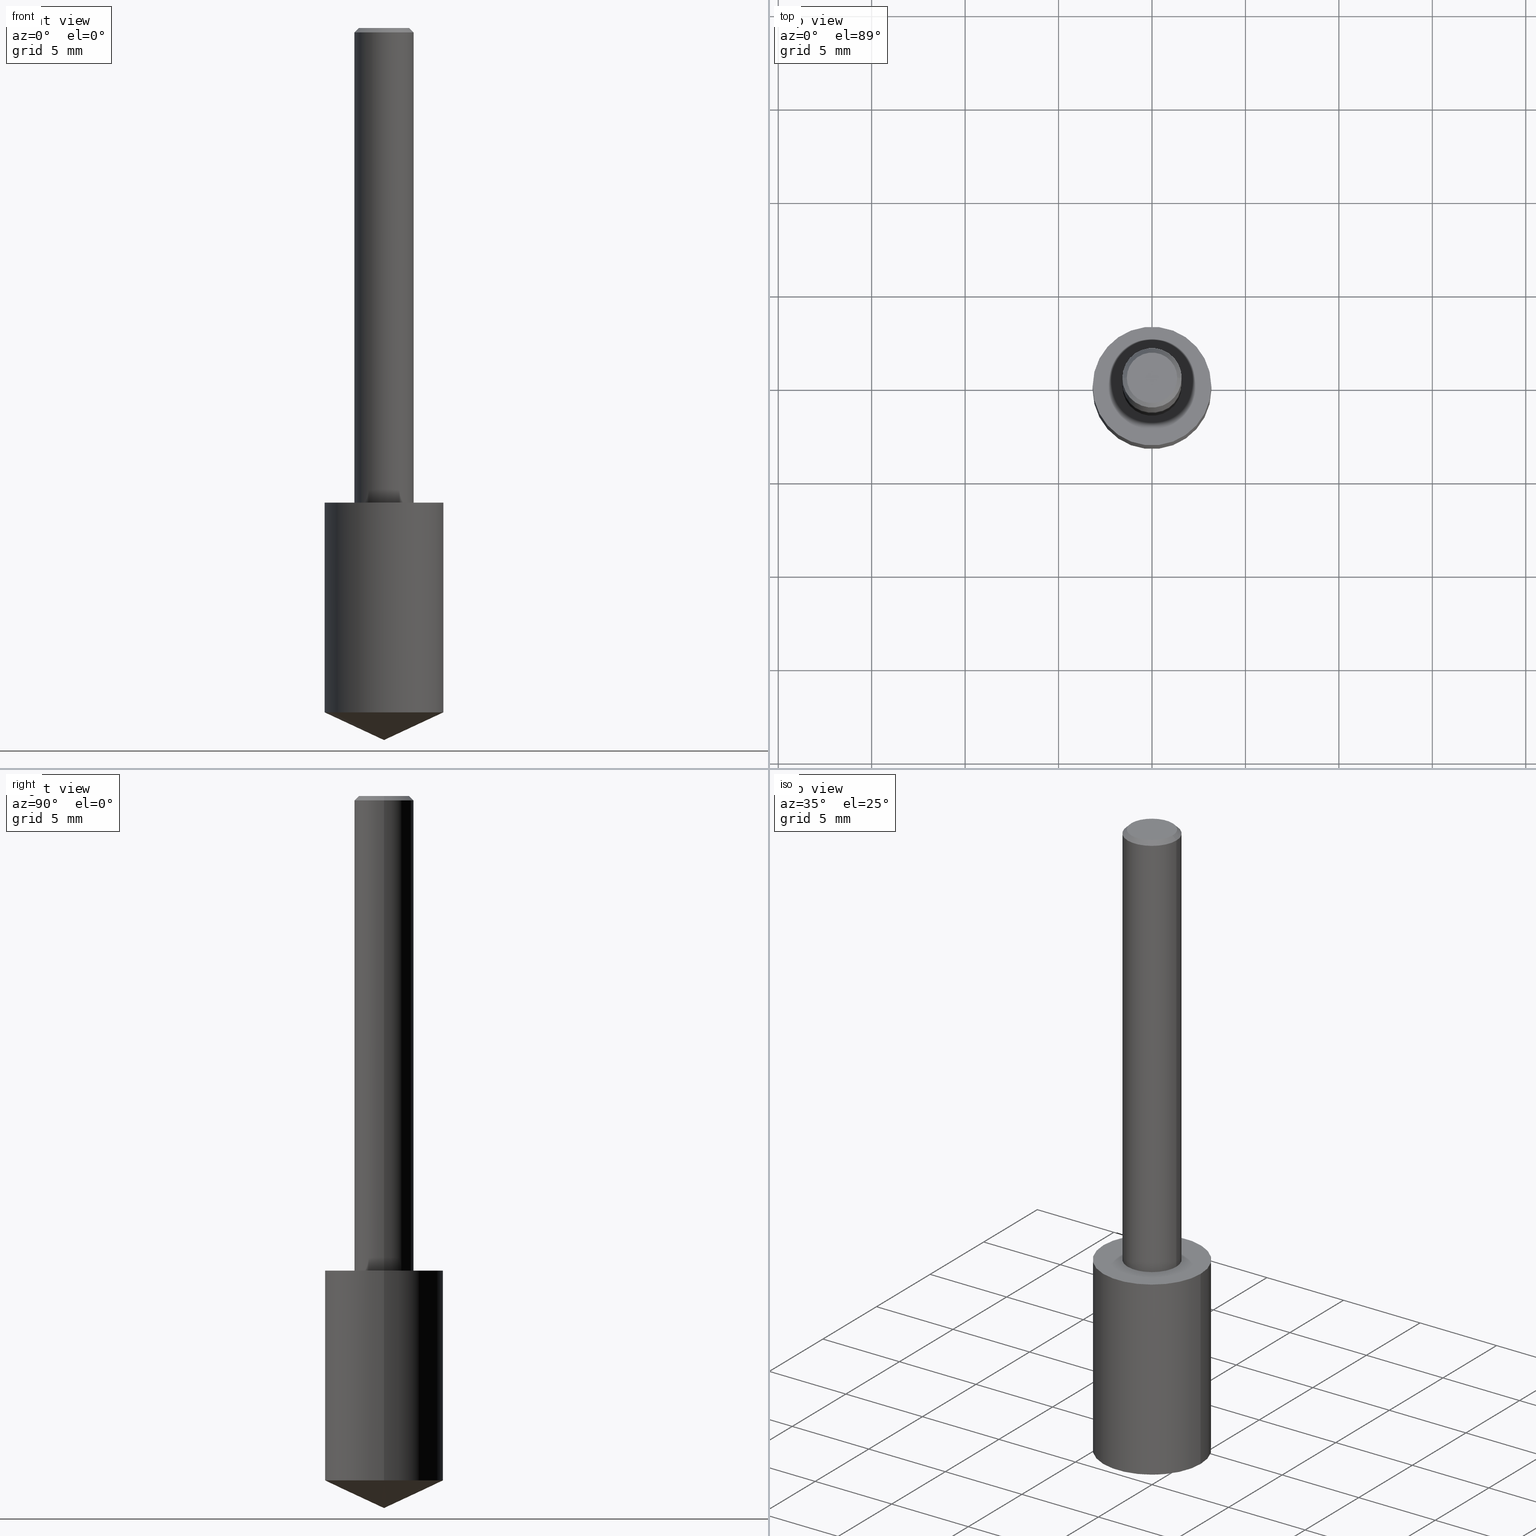
[diagram: canonical four-view strip — front | top / right | iso, engineering-drawing reading convention]
A machine part, canonical four-view strip (front | top / right | iso — engineering-drawing reading convention). The complete STEP part file that produces these views, byte-faithful:
ISO-10303-21;
HEADER;
FILE_DESCRIPTION (( 'STEP AP203' ),
    '1' );
FILE_NAME ('06173.STEP',
    '2024-04-30T18:32:59',
    ( '' ),
    ( '' ),
    'SwSTEP 2.0',
    'SolidWorks 2023',
    '' );
FILE_SCHEMA (( 'CONFIG_CONTROL_DESIGN' ));
ENDSEC;

DATA;
#1 = PERSON_AND_ORGANIZATION_ROLE ( 'design_supplier' ) ;
#2 = DIRECTION ( 'NONE',  ( -1.000000000000000000, 6.982962677686265922E-15, -4.876176775795935793E-29 ) ) ;
#3 = EDGE_CURVE ( 'NONE', #246, #134, #335, .T. ) ;
#4 = EDGE_LOOP ( 'NONE', ( #326, #301, #225, #144 ) ) ;
#5 = LINE ( 'NONE', #159, #296 ) ;
#6 = LINE ( 'NONE', #112, #90 ) ;
#7 = EDGE_LOOP ( 'NONE', ( #117, #323, #294, #272 ) ) ;
#8 = ADVANCED_FACE ( 'NONE', ( #89 ), #226, .T. ) ;
#9 = CARTESIAN_POINT ( 'NONE',  ( 2.292627005798582375E-31, -3.273263755165473266E-17, -0.009375000000000069042 ) ) ;
#10 = APPROVAL ( #19, 'UNSPECIFIED' ) ;
#11 = CC_DESIGN_PERSON_AND_ORGANIZATION_ASSIGNMENT ( #116, #223, ( #154 ) ) ;
#12 = ORIENTED_EDGE ( 'NONE', *, *, #98, .F. ) ;
#13 = ORIENTED_EDGE ( 'NONE', *, *, #292, .T. ) ;
#14 = CARTESIAN_POINT ( 'NONE',  ( 0.06250000000000012490, -3.927916506198539224E-15, -1.000000000000000222 ) ) ;
#15 = CLOSED_SHELL ( 'NONE', ( #160, #138, #183, #29, #8, #84 ) ) ;
#16 = APPROVAL_ROLE ( '' ) ;
#17 = CARTESIAN_POINT ( 'NONE',  ( 0.1250000000000000000, -4.364351673553930105E-15, -1.000000000000000222 ) ) ;
#18 = ORIENTED_EDGE ( 'NONE', *, *, #242, .F. ) ;
#19 = APPROVAL_STATUS ( 'not_yet_approved' ) ;
#20 = PRODUCT_DEFINITION_SHAPE ( 'NONE', 'NONE',  #268 ) ;
#21 = DIRECTION ( 'NONE',  ( 1.000000000000000000, -6.982962677686270655E-15, 0.000000000000000000 ) ) ;
#22 = VERTEX_POINT ( 'NONE', #244 ) ;
#23 = DIRECTION ( 'NONE',  ( -2.445468806185136877E-29, 3.491481338843145188E-15, 1.000000000000000000 ) ) ;
#24 = ADVANCED_FACE ( 'NONE', ( #63 ), #87, .T. ) ;
#25 = CIRCLE ( 'NONE', #212, 0.1250000000000000000 ) ;
#26 = DIRECTION ( 'NONE',  ( -0.9063077870366507138, 7.915267918739014631E-15, 0.4226182617406978315 ) ) ;
#27 = CARTESIAN_POINT ( 'NONE',  ( 3.668203209277704895E-29, -5.237222008264718177E-15, -1.500000000000000222 ) ) ;
#28 = PERSON_AND_ORGANIZATION ( #171, #108 ) ;
#29 = ADVANCED_FACE ( 'NONE', ( #161 ), #91, .T. ) ;
#30 = CIRCLE ( 'NONE', #218, 0.06250000000000000000 ) ;
#31 = CC_DESIGN_DATE_AND_TIME_ASSIGNMENT ( #76, #198, ( #268 ) ) ;
#32 = CARTESIAN_POINT ( 'NONE',  ( 2.292627005798582375E-31, -3.273263755165473266E-17, -0.009375000000000069042 ) ) ;
#33 = CC_DESIGN_APPROVAL ( #10, ( #275 ) ) ;
#34 = PRODUCT_RELATED_PRODUCT_CATEGORY ( 'detail', '', ( #154 ) ) ;
#35 = EDGE_LOOP ( 'NONE', ( #249, #115, #234 ) ) ;
#36 =( NAMED_UNIT ( * ) SI_UNIT ( $, .STERADIAN. ) SOLID_ANGLE_UNIT ( ) );
#37 = ORIENTED_EDGE ( 'NONE', *, *, #290, .T. ) ;
#38 = ORIENTED_EDGE ( 'NONE', *, *, #290, .F. ) ;
#39 = EDGE_CURVE ( 'NONE', #66, #22, #247, .T. ) ;
#40 = LOCAL_TIME ( 14, 32, 59.00000000000000000, #316 ) ;
#41 = DIRECTION ( 'NONE',  ( 1.000000000000000000, -6.982962677686266711E-15, 0.000000000000000000 ) ) ;
#42 = APPROVAL_DATE_TIME ( #332, #261 ) ;
#43 = PLANE ( 'NONE',  #303 ) ;
#44 = EDGE_LOOP ( 'NONE', ( #68, #38 ) ) ;
#45 = EDGE_CURVE ( 'NONE', #22, #66, #25, .T. ) ;
#46 = COORDINATED_UNIVERSAL_TIME_OFFSET ( 5, 0, .BEHIND. ) ;
#47 = FACE_OUTER_BOUND ( 'NONE', #194, .T. ) ;
#48 = DESIGN_CONTEXT ( 'detailed design', #254, 'design' ) ;
#49 = VECTOR ( 'NONE', #310, 39.37007874015748143 ) ;
#50 = AXIS2_PLACEMENT_3D ( 'NONE', #32, #81, #195 ) ;
#51 = DIRECTION ( 'NONE',  ( -2.445468806185136597E-29, 3.491481338843145583E-15, 1.000000000000000000 ) ) ;
#52 = APPLICATION_CONTEXT ( 'configuration controlled 3d designs of mechanical parts and assemblies' ) ;
#53 = CARTESIAN_POINT ( 'NONE',  ( -0.1249999999999999861, -4.145530527738615868E-15, -1.441711542730625517 ) ) ;
#54 = EDGE_CURVE ( 'NONE', #170, #193, #5, .T. ) ;
#55 = APPROVAL_ROLE ( '' ) ;
#56 = FACE_OUTER_BOUND ( 'NONE', #44, .T. ) ;
#57 = CYLINDRICAL_SURFACE ( 'NONE', #228, 0.1250000000000000000 ) ;
#58 = VECTOR ( 'NONE', #143, 39.37007874015748143 ) ;
#59 = DIRECTION ( 'NONE',  ( 1.000000000000000000, -6.982962677686266711E-15, 0.000000000000000000 ) ) ;
#60 = AXIS2_PLACEMENT_3D ( 'NONE', #148, #145, #327 ) ;
#61 = DIRECTION ( 'NONE',  ( -2.445468806185136597E-29, 3.491481338843145583E-15, 1.000000000000000000 ) ) ;
#62 = LINE ( 'NONE', #162, #79 ) ;
#63 = FACE_OUTER_BOUND ( 'NONE', #7, .T. ) ;
#64 = AXIS2_PLACEMENT_3D ( 'NONE', #9, #299, #321 ) ;
#65 = LOCAL_TIME ( 14, 32, 59.00000000000000000, #120 ) ;
#66 = VERTEX_POINT ( 'NONE', #295 ) ;
#67 = FACE_OUTER_BOUND ( 'NONE', #215, .T. ) ;
#68 = ORIENTED_EDGE ( 'NONE', *, *, #3, .F. ) ;
#69 = DIRECTION ( 'NONE',  ( -2.445468806185136597E-29, 3.491481338843145583E-15, 1.000000000000000000 ) ) ;
#70 = CIRCLE ( 'NONE', #263, 0.1250000000000000000 ) ;
#71 = CARTESIAN_POINT ( 'NONE',  ( -9.261009624683002666E-28, 1.322226732217803884E-13, 37.87007874015748143 ) ) ;
#72 = CALENDAR_DATE ( 2024, 30, 4 ) ;
#73 = DIRECTION ( 'NONE',  ( -2.445468806185136597E-29, 3.491481338843145583E-15, 1.000000000000000000 ) ) ;
#74 = EDGE_CURVE ( 'NONE', #92, #193, #107, .T. ) ;
#75 = DIRECTION ( 'NONE',  ( 1.000000000000000000, -6.982962677686265922E-15, 4.876176775795935793E-29 ) ) ;
#76 = DATE_AND_TIME ( #252, #210 ) ;
#77 = CARTESIAN_POINT ( 'NONE',  ( 0.1249999999999999861, -5.906579282149524440E-15, -1.441711542730625517 ) ) ;
#78 = CIRCLE ( 'NONE', #103, 0.05312499999999999861 ) ;
#79 = VECTOR ( 'NONE', #245, 39.37007874015748143 ) ;
#80 = EDGE_CURVE ( 'NONE', #111, #243, #70, .T. ) ;
#81 = DIRECTION ( 'NONE',  ( -2.445468806185136597E-29, 3.491481338843145583E-15, 1.000000000000000000 ) ) ;
#82 = CARTESIAN_POINT ( 'NONE',  ( 0.000000000000000000, 0.000000000000000000, 0.000000000000000000 ) ) ;
#83 = AXIS2_PLACEMENT_3D ( 'NONE', #146, #206, #100 ) ;
#84 = ADVANCED_FACE ( 'NONE', ( #231 ), #43, .F. ) ;
#85 = PLANE ( 'NONE',  #318 ) ;
#86 = DIRECTION ( 'NONE',  ( -2.445468806185136597E-29, 3.491481338843145583E-15, 1.000000000000000000 ) ) ;
#87 = CYLINDRICAL_SURFACE ( 'NONE', #167, 0.1250000000000000000 ) ;
#88 = VECTOR ( 'NONE', #178, 39.37007874015748143 ) ;
#89 = FACE_OUTER_BOUND ( 'NONE', #147, .T. ) ;
#90 = VECTOR ( 'NONE', #219, 39.37007874015748143 ) ;
#91 = CYLINDRICAL_SURFACE ( 'NONE', #185, 0.06250000000000006939 ) ;
#92 = VERTEX_POINT ( 'NONE', #260 ) ;
#93 = VERTEX_POINT ( 'NONE', #149 ) ;
#94 = CARTESIAN_POINT ( 'NONE',  ( 3.668203209277704895E-29, -5.237222008264718177E-15, -1.500000000000000222 ) ) ;
#95 = EDGE_LOOP ( 'NONE', ( #222, #224 ) ) ;
#96 =( LENGTH_UNIT ( ) NAMED_UNIT ( * ) SI_UNIT ( $, .METRE. ) );
#97 = CARTESIAN_POINT ( 'NONE',  ( 2.292627005798582375E-31, -3.273263755165473266E-17, -0.009375000000000069042 ) ) ;
#98 = EDGE_CURVE ( 'NONE', #134, #193, #173, .T. ) ;
#99 = COORDINATED_UNIVERSAL_TIME_OFFSET ( 5, 0, .BEHIND. ) ;
#100 = DIRECTION ( 'NONE',  ( 1.000000000000000000, -6.982962677686266711E-15, 0.000000000000000000 ) ) ;
#101 = APPROVAL_DATE_TIME ( #317, #10 ) ;
#102 = DIRECTION ( 'NONE',  ( -2.438088387897960049E-29, 3.491481338843145188E-15, 1.000000000000000000 ) ) ;
#103 = AXIS2_PLACEMENT_3D ( 'NONE', #121, #73, #253 ) ;
#104 = CALENDAR_DATE ( 2024, 30, 4 ) ;
#105 = LINE ( 'NONE', #328, #58 ) ;
#106 = EDGE_CURVE ( 'NONE', #309, #111, #279, .T. ) ;
#107 = CIRCLE ( 'NONE', #50, 0.06250000000000000000 ) ;
#108 = ORGANIZATION ( 'UNSPECIFIED', 'UNSPECIFIED', '' ) ;
#109 = CARTESIAN_POINT ( 'NONE',  ( 2.445468806185137438E-29, -3.491481338843146371E-15, -1.000000000000000222 ) ) ;
#110 = CARTESIAN_POINT ( 'NONE',  ( 3.208524509419923742E-29, -2.398742141377440690E-15, -1.000000000000000222 ) ) ;
#111 = VERTEX_POINT ( 'NONE', #53 ) ;
#112 = CARTESIAN_POINT ( 'NONE',  ( 0.06250000000000000000, -4.615137624123754923E-16, -0.009375000000000069042 ) ) ;
#113 = DIRECTION ( 'NONE',  ( -2.445468806185136597E-29, 3.491481338843145583E-15, 1.000000000000000000 ) ) ;
#114 = ORIENTED_EDGE ( 'NONE', *, *, #242, .T. ) ;
#115 = ORIENTED_EDGE ( 'NONE', *, *, #166, .T. ) ;
#116 = PERSON_AND_ORGANIZATION ( #171, #108 ) ;
#117 = ORIENTED_EDGE ( 'NONE', *, *, #258, .T. ) ;
#118 = DIRECTION ( 'NONE',  ( -1.000000000000000000, 6.982962677686265922E-15, -4.876176775795935793E-29 ) ) ;
#119 = ORIENTED_EDGE ( 'NONE', *, *, #80, .T. ) ;
#120 = COORDINATED_UNIVERSAL_TIME_OFFSET ( 5, 0, .BEHIND. ) ;
#121 = CARTESIAN_POINT ( 'NONE',  ( -7.487088864773345706E-50, 1.068957861474247695E-35, 3.061616997868395197E-21 ) ) ;
#122 = FACE_OUTER_BOUND ( 'NONE', #306, .T. ) ;
#123 = PERSON_AND_ORGANIZATION ( #171, #108 ) ;
#124 = CARTESIAN_POINT ( 'NONE',  ( 3.668203209277704895E-29, -5.237222008264718177E-15, -1.500000000000000222 ) ) ;
#125 = DIRECTION ( 'NONE',  ( 1.000000000000000000, -6.982962677686266711E-15, 0.000000000000000000 ) ) ;
#126 = AXIS2_PLACEMENT_3D ( 'NONE', #256, #337, #288 ) ;
#127 = CARTESIAN_POINT ( 'NONE',  ( 2.445468806185137438E-29, -3.491481338843146371E-15, -1.000000000000000222 ) ) ;
#128 = EDGE_CURVE ( 'NONE', #243, #22, #333, .T. ) ;
#129 = CC_DESIGN_PERSON_AND_ORGANIZATION_ASSIGNMENT ( #28, #287, ( #275 ) ) ;
#130 = VECTOR ( 'NONE', #23, 39.37007874015748143 ) ;
#131 =( GEOMETRIC_REPRESENTATION_CONTEXT ( 3 ) GLOBAL_UNCERTAINTY_ASSIGNED_CONTEXT ( ( #338 ) ) GLOBAL_UNIT_ASSIGNED_CONTEXT ( ( #133, #216, #36 ) ) REPRESENTATION_CONTEXT ( 'NONE', 'WORKASPACE' ) );
#132 = ORIENTED_EDGE ( 'NONE', *, *, #188, .F. ) ;
#133 =( CONVERSION_BASED_UNIT ( 'INCH', #214 ) LENGTH_UNIT ( ) NAMED_UNIT ( #221 ) );
#134 = VERTEX_POINT ( 'NONE', #179 ) ;
#135 = ORIENTED_EDGE ( 'NONE', *, *, #39, .F. ) ;
#136 = ORIENTED_EDGE ( 'NONE', *, *, #106, .T. ) ;
#137 = AXIS2_PLACEMENT_3D ( 'NONE', #71, #211, #157 ) ;
#138 = ADVANCED_FACE ( 'NONE', ( #331 ), #175, .T. ) ;
#139 = APPLICATION_PROTOCOL_DEFINITION ( 'international standard', 'config_control_design', 1994, #52 ) ;
#140 = CARTESIAN_POINT ( 'NONE',  ( 2.445468806185136877E-29, -3.491481338843145977E-15, -1.000000000000000222 ) ) ;
#141 = CC_DESIGN_DATE_AND_TIME_ASSIGNMENT ( #207, #264, ( #275 ) ) ;
#142 = COORDINATED_UNIVERSAL_TIME_OFFSET ( 5, 0, .BEHIND. ) ;
#143 = DIRECTION ( 'NONE',  ( -2.445468806185136877E-29, 3.491481338843145188E-15, 1.000000000000000000 ) ) ;
#144 = ORIENTED_EDGE ( 'NONE', *, *, #292, .F. ) ;
#145 = DIRECTION ( 'NONE',  ( 0.000000000000000000, 0.000000000000000000, 1.000000000000000000 ) ) ;
#146 = CARTESIAN_POINT ( 'NONE',  ( -9.261009624683002666E-28, 1.322226732217803884E-13, 37.87007874015748143 ) ) ;
#147 = EDGE_LOOP ( 'NONE', ( #250, #18, #217, #177 ) ) ;
#148 = CARTESIAN_POINT ( 'NONE',  ( 0.000000000000000000, 0.000000000000000000, 0.000000000000000000 ) ) ;
#149 = CARTESIAN_POINT ( 'NONE',  ( 0.05312499999999999861, -4.129888592719939842E-16, 3.061617000609493422E-21 ) ) ;
#150 = ORIENTED_EDGE ( 'NONE', *, *, #205, .F. ) ;
#151 = MECHANICAL_CONTEXT ( 'NONE', #52, 'mechanical' ) ;
#152 = DIRECTION ( 'NONE',  ( 1.000000000000000000, -6.982962677686270655E-15, 0.000000000000000000 ) ) ;
#153 = CARTESIAN_POINT ( 'NONE',  ( 2.292627005798582375E-31, -3.273263755165473266E-17, -0.009375000000000069042 ) ) ;
#154 = PRODUCT ( '06173', '06173', '', ( #151 ) ) ;
#155 = VECTOR ( 'NONE', #26, 39.37007874015748143 ) ;
#156 = CC_DESIGN_PERSON_AND_ORGANIZATION_ASSIGNMENT ( #237, #1, ( #241 ) ) ;
#157 = DIRECTION ( 'NONE',  ( 1.000000000000000000, -6.982962677686266711E-15, 0.000000000000000000 ) ) ;
#158 = APPROVAL_DATE_TIME ( #201, #236 ) ;
#159 = CARTESIAN_POINT ( 'NONE',  ( -0.06250000000000000000, 4.037025298037369491E-16, -0.009375000000000069042 ) ) ;
#160 = ADVANCED_FACE ( 'NONE', ( #47 ), #239, .T. ) ;
#161 = FACE_OUTER_BOUND ( 'NONE', #200, .T. ) ;
#162 = CARTESIAN_POINT ( 'NONE',  ( 0.06250000000000006939, -4.364351673553921624E-16, 3.047610484872463374E-30 ) ) ;
#163 = ORIENTED_EDGE ( 'NONE', *, *, #258, .F. ) ;
#164 = DIRECTION ( 'NONE',  ( 2.438088387897960049E-29, -3.491481338843145188E-15, -1.000000000000000000 ) ) ;
#165 = CARTESIAN_POINT ( 'NONE',  ( 0.000000000000000000, 0.000000000000000000, 0.000000000000000000 ) ) ;
#166 = EDGE_CURVE ( 'NONE', #309, #243, #334, .T. ) ;
#167 = AXIS2_PLACEMENT_3D ( 'NONE', #325, #113, #220 ) ;
#168 = DIRECTION ( 'NONE',  ( 1.000000000000000000, -6.982962677686264344E-15, 0.000000000000000000 ) ) ;
#169 = CC_DESIGN_SECURITY_CLASSIFICATION ( #275, ( #241 ) ) ;
#170 = VERTEX_POINT ( 'NONE', #308 ) ;
#171 = PERSON ( 'UNSPECIFIED', 'UNSPECIFIED', 'UNSPECIFIED', ('UNSPECIFIED'), ('UNSPECIFIED'), ('UNSPECIFIED') ) ;
#172 = PERSON_AND_ORGANIZATION ( #171, #108 ) ;
#173 = LINE ( 'NONE', #227, #88 ) ;
#174 = APPROVAL_STATUS ( 'not_yet_approved' ) ;
#175 = CYLINDRICAL_SURFACE ( 'NONE', #180, 0.06250000000000006939 ) ;
#176 = CARTESIAN_POINT ( 'NONE',  ( -0.06250000000000000000, -1.318017778347336672E-15, -0.009375000000000069042 ) ) ;
#177 = ORIENTED_EDGE ( 'NONE', *, *, #192, .T. ) ;
#178 = DIRECTION ( 'NONE',  ( -2.445468806185136877E-29, 3.491481338843145188E-15, 1.000000000000000000 ) ) ;
#179 = CARTESIAN_POINT ( 'NONE',  ( -0.06250000000000012490, -1.318017778347335489E-15, -1.000000000000000222 ) ) ;
#180 = AXIS2_PLACEMENT_3D ( 'NONE', #82, #203, #315 ) ;
#181 = LOCAL_TIME ( 14, 32, 59.00000000000000000, #99 ) ;
#182 = CALENDAR_DATE ( 2024, 30, 4 ) ;
#183 = ADVANCED_FACE ( 'NONE', ( #56 ), #235, .F. ) ;
#184 = DIRECTION ( 'NONE',  ( -2.445468806185136597E-29, 3.491481338843145583E-15, 1.000000000000000000 ) ) ;
#185 = AXIS2_PLACEMENT_3D ( 'NONE', #165, #61, #276 ) ;
#186 = APPROVAL_PERSON_ORGANIZATION ( #281, #236, #16 ) ;
#187 = ORIENTED_EDGE ( 'NONE', *, *, #54, .F. ) ;
#188 = EDGE_CURVE ( 'NONE', #93, #170, #283, .T. ) ;
#189 = DIRECTION ( 'NONE',  ( -2.445468806185136597E-29, 3.491481338843145583E-15, 1.000000000000000000 ) ) ;
#190 = ORIENTED_EDGE ( 'NONE', *, *, #192, .F. ) ;
#191 = DIRECTION ( 'NONE',  ( -2.445468806185136597E-29, 3.491481338843145583E-15, 1.000000000000000000 ) ) ;
#192 = EDGE_CURVE ( 'NONE', #193, #92, #30, .T. ) ;
#193 = VERTEX_POINT ( 'NONE', #176 ) ;
#194 = EDGE_LOOP ( 'NONE', ( #132, #329, #280, #187 ) ) ;
#195 = DIRECTION ( 'NONE',  ( 1.000000000000000000, -6.982962677686266711E-15, 0.000000000000000000 ) ) ;
#196 = ORIENTED_EDGE ( 'NONE', *, *, #188, .T. ) ;
#197 = MANIFOLD_SOLID_BREP ( 'Body-Move/Copy2[2]', #15 ) ;
#198 = DATE_TIME_ROLE ( 'creation_date' ) ;
#199 = CARTESIAN_POINT ( 'NONE',  ( 3.525660605264793981E-29, -5.033708947438741890E-15, -1.441711542730625517 ) ) ;
#200 = EDGE_LOOP ( 'NONE', ( #12, #37, #13, #190 ) ) ;
#201 = DATE_AND_TIME ( #230, #65 ) ;
#202 = DIRECTION ( 'NONE',  ( 2.438088387897960049E-29, -3.491481338843145188E-15, -1.000000000000000000 ) ) ;
#203 = DIRECTION ( 'NONE',  ( -2.445468806185136597E-29, 3.491481338843145583E-15, 1.000000000000000000 ) ) ;
#204 = SHAPE_DEFINITION_REPRESENTATION ( #20, #339 ) ;
#205 = EDGE_CURVE ( 'NONE', #111, #66, #105, .T. ) ;
#206 = DIRECTION ( 'NONE',  ( -2.445468806185136597E-29, 3.491481338843145583E-15, 1.000000000000000000 ) ) ;
#207 = DATE_AND_TIME ( #182, #40 ) ;
#208 = CC_DESIGN_PERSON_AND_ORGANIZATION_ASSIGNMENT ( #265, #340, ( #241 ) ) ;
#209 = AXIS2_PLACEMENT_3D ( 'NONE', #109, #69, #168 ) ;
#210 = LOCAL_TIME ( 14, 32, 59.00000000000000000, #142 ) ;
#211 = DIRECTION ( 'NONE',  ( -2.445468806185136597E-29, 3.491481338843145583E-15, 1.000000000000000000 ) ) ;
#212 = AXIS2_PLACEMENT_3D ( 'NONE', #140, #86, #271 ) ;
#213 = APPROVAL_PERSON_ORGANIZATION ( #312, #261, #304 ) ;
#214 = LENGTH_MEASURE_WITH_UNIT ( LENGTH_MEASURE( 0.02539999999999999897 ), #96 );
#215 = EDGE_LOOP ( 'NONE', ( #259, #136, #163 ) ) ;
#216 =( NAMED_UNIT ( * ) PLANE_ANGLE_UNIT ( ) SI_UNIT ( $, .RADIAN. ) );
#217 = ORIENTED_EDGE ( 'NONE', *, *, #54, .T. ) ;
#218 = AXIS2_PLACEMENT_3D ( 'NONE', #153, #262, #125 ) ;
#219 = DIRECTION ( 'NONE',  ( 0.7071067811865450192, -7.319954787623246579E-15, -0.7071067811865500152 ) ) ;
#220 = DIRECTION ( 'NONE',  ( 1.000000000000000000, -6.982962677686266711E-15, 0.000000000000000000 ) ) ;
#221 = DIMENSIONAL_EXPONENTS ( 1.000000000000000000, 0.000000000000000000, 0.000000000000000000, 0.000000000000000000, 0.000000000000000000, 0.000000000000000000, 0.000000000000000000 ) ;
#222 = ORIENTED_EDGE ( 'NONE', *, *, #45, .T. ) ;
#223 = PERSON_AND_ORGANIZATION_ROLE ( 'design_owner' ) ;
#224 = ORIENTED_EDGE ( 'NONE', *, *, #39, .T. ) ;
#225 = ORIENTED_EDGE ( 'NONE', *, *, #74, .F. ) ;
#226 = CONICAL_SURFACE ( 'NONE', #64, 0.06250000000000000000, 0.7853981633974447263 ) ;
#227 = CARTESIAN_POINT ( 'NONE',  ( -0.06250000000000006939, 4.440892098500631092E-16, -3.074334431409319267E-30 ) ) ;
#228 = AXIS2_PLACEMENT_3D ( 'NONE', #127, #184, #59 ) ;
#229 = ADVANCED_FACE ( 'NONE', ( #282 ), #266, .T. ) ;
#230 = CALENDAR_DATE ( 2024, 30, 4 ) ;
#231 = FACE_OUTER_BOUND ( 'NONE', #298, .T. ) ;
#232 = APPLICATION_PROTOCOL_DEFINITION ( 'international standard', 'config_control_design', 1994, #254 ) ;
#233 = CARTESIAN_POINT ( 'NONE',  ( -3.743544432386672853E-50, 5.344789307371238476E-36, 1.530808498934197599E-21 ) ) ;
#234 = ORIENTED_EDGE ( 'NONE', *, *, #80, .F. ) ;
#235 = PLANE ( 'NONE',  #238 ) ;
#236 = APPROVAL ( #255, 'UNSPECIFIED' ) ;
#237 = PERSON_AND_ORGANIZATION ( #171, #108 ) ;
#238 = AXIS2_PLACEMENT_3D ( 'NONE', #286, #102, #75 ) ;
#239 = CONICAL_SURFACE ( 'NONE', #324, 0.06250000000000000000, 0.7853981633974447263 ) ;
#240 = AXIS2_PLACEMENT_3D ( 'NONE', #322, #189, #300 ) ;
#241 = PRODUCT_DEFINITION_FORMATION_WITH_SPECIFIED_SOURCE ( 'ANY', '', #154, .NOT_KNOWN. ) ;
#242 = EDGE_CURVE ( 'NONE', #170, #93, #78, .T. ) ;
#243 = VERTEX_POINT ( 'NONE', #77 ) ;
#244 = CARTESIAN_POINT ( 'NONE',  ( 0.1250000000000000000, -4.364351673553929316E-15, -1.000000000000000222 ) ) ;
#245 = DIRECTION ( 'NONE',  ( -2.445468806185136877E-29, 3.491481338843145188E-15, 1.000000000000000000 ) ) ;
#246 = VERTEX_POINT ( 'NONE', #14 ) ;
#247 = CIRCLE ( 'NONE', #311, 0.1250000000000000000 ) ;
#248 = LOCAL_TIME ( 14, 32, 59.00000000000000000, #46 ) ;
#249 = ORIENTED_EDGE ( 'NONE', *, *, #106, .F. ) ;
#250 = ORIENTED_EDGE ( 'NONE', *, *, #302, .F. ) ;
#251 = ORIENTED_EDGE ( 'NONE', *, *, #128, .T. ) ;
#252 = CALENDAR_DATE ( 2024, 30, 4 ) ;
#253 = DIRECTION ( 'NONE',  ( 1.000000000000000000, -6.982962677686266711E-15, 4.876176628004948512E-29 ) ) ;
#254 = APPLICATION_CONTEXT ( 'configuration controlled 3d designs of mechanical parts and assemblies' ) ;
#255 = APPROVAL_STATUS ( 'not_yet_approved' ) ;
#256 = CARTESIAN_POINT ( 'NONE',  ( -7.487088864773345706E-50, 1.068957861474247695E-35, 3.061616997868395197E-21 ) ) ;
#257 = DIRECTION ( 'NONE',  ( -2.445468806185136597E-29, 3.491481338843145583E-15, 1.000000000000000000 ) ) ;
#258 = EDGE_CURVE ( 'NONE', #243, #111, #293, .T. ) ;
#259 = ORIENTED_EDGE ( 'NONE', *, *, #166, .F. ) ;
#260 = CARTESIAN_POINT ( 'NONE',  ( 0.06250000000000000000, -4.691678049070464390E-16, -0.009375000000000069042 ) ) ;
#261 = APPROVAL ( #174, 'UNSPECIFIED' ) ;
#262 = DIRECTION ( 'NONE',  ( -2.445468806185136597E-29, 3.491481338843145583E-15, 1.000000000000000000 ) ) ;
#263 = AXIS2_PLACEMENT_3D ( 'NONE', #199, #51, #152 ) ;
#264 = DATE_TIME_ROLE ( 'classification_date' ) ;
#265 = PERSON_AND_ORGANIZATION ( #171, #108 ) ;
#266 = CONICAL_SURFACE ( 'NONE', #83, 84.42940631927434936, 1.134464013796316006 ) ;
#267 = ADVANCED_FACE ( 'NONE', ( #122 ), #57, .T. ) ;
#268 = PRODUCT_DEFINITION ( 'UNKNOWN', '', #241, #48 ) ;
#269 = DIRECTION ( 'NONE',  ( -0.7071067811865450192, 2.468850131082230634E-15, -0.7071067811865500152 ) ) ;
#270 = CC_DESIGN_APPROVAL ( #261, ( #268 ) ) ;
#271 = DIRECTION ( 'NONE',  ( 1.000000000000000000, -6.982962677686266711E-15, 0.000000000000000000 ) ) ;
#272 = ORIENTED_EDGE ( 'NONE', *, *, #128, .F. ) ;
#273 = CARTESIAN_POINT ( 'NONE',  ( 2.445468806185136877E-29, -3.491481338843145977E-15, -1.000000000000000222 ) ) ;
#274 = CLOSED_SHELL ( 'NONE', ( #24, #307, #229, #267, #277 ) ) ;
#275 = SECURITY_CLASSIFICATION ( '', '', #291 ) ;
#276 = DIRECTION ( 'NONE',  ( 1.000000000000000000, -6.982962677686266711E-15, 4.876176775795935793E-29 ) ) ;
#277 = ADVANCED_FACE ( 'NONE', ( #320 ), #85, .F. ) ;
#278 = PERSON_AND_ORGANIZATION_ROLE ( 'creator' ) ;
#279 = LINE ( 'NONE', #124, #155 ) ;
#280 = ORIENTED_EDGE ( 'NONE', *, *, #74, .T. ) ;
#281 = PERSON_AND_ORGANIZATION ( #171, #108 ) ;
#282 = FACE_OUTER_BOUND ( 'NONE', #35, .T. ) ;
#283 = CIRCLE ( 'NONE', #126, 0.05312499999999999861 ) ;
#284 = CIRCLE ( 'NONE', #240, 0.06250000000000012490 ) ;
#285 = CARTESIAN_POINT ( 'NONE',  ( 3.525660605264793981E-29, -5.033708947438741890E-15, -1.441711542730625517 ) ) ;
#286 = CARTESIAN_POINT ( 'NONE',  ( 2.445468806185137438E-29, -3.491481338843146371E-15, -1.000000000000000222 ) ) ;
#287 = PERSON_AND_ORGANIZATION_ROLE ( 'classification_officer' ) ;
#288 = DIRECTION ( 'NONE',  ( 1.000000000000000000, -6.982962677686266711E-15, 4.876176628004948512E-29 ) ) ;
#289 = CONICAL_SURFACE ( 'NONE', #137, 84.42940631927434936, 1.134464013796316006 ) ;
#290 = EDGE_CURVE ( 'NONE', #134, #246, #284, .T. ) ;
#291 = SECURITY_CLASSIFICATION_LEVEL ( 'unclassified' ) ;
#292 = EDGE_CURVE ( 'NONE', #246, #92, #62, .T. ) ;
#293 = CIRCLE ( 'NONE', #336, 0.1250000000000000000 ) ;
#294 = ORIENTED_EDGE ( 'NONE', *, *, #45, .F. ) ;
#295 = CARTESIAN_POINT ( 'NONE',  ( -0.1250000000000000000, -3.374416723440817912E-15, -1.000000000000000222 ) ) ;
#296 = VECTOR ( 'NONE', #269, 39.37007874015748143 ) ;
#297 = APPROVAL_PERSON_ORGANIZATION ( #123, #10, #55 ) ;
#298 = EDGE_LOOP ( 'NONE', ( #114, #196 ) ) ;
#299 = DIRECTION ( 'NONE',  ( 2.445468806185136597E-29, -3.491481338843145583E-15, -1.000000000000000000 ) ) ;
#300 = DIRECTION ( 'NONE',  ( 1.000000000000000000, -6.982962677686264344E-15, 0.000000000000000000 ) ) ;
#301 = ORIENTED_EDGE ( 'NONE', *, *, #98, .T. ) ;
#302 = EDGE_CURVE ( 'NONE', #93, #92, #6, .T. ) ;
#303 = AXIS2_PLACEMENT_3D ( 'NONE', #233, #202, #118 ) ;
#304 = APPROVAL_ROLE ( '' ) ;
#305 = DIRECTION ( 'NONE',  ( 2.445468806185136597E-29, -3.491481338843145583E-15, -1.000000000000000000 ) ) ;
#306 = EDGE_LOOP ( 'NONE', ( #150, #119, #251, #135 ) ) ;
#307 = ADVANCED_FACE ( 'NONE', ( #67 ), #289, .T. ) ;
#308 = CARTESIAN_POINT ( 'NONE',  ( -0.05312499999999999861, 3.873362110279099094E-16, 3.061616995216862494E-21 ) ) ;
#309 = VERTEX_POINT ( 'NONE', #27 ) ;
#310 = DIRECTION ( 'NONE',  ( 0.9063077870366507138, -4.853149677051390623E-15, 0.4226182617406978315 ) ) ;
#311 = AXIS2_PLACEMENT_3D ( 'NONE', #273, #191, #41 ) ;
#312 = PERSON_AND_ORGANIZATION ( #171, #108 ) ;
#313 = DIRECTION ( 'NONE',  ( -1.000000000000000000, 6.982962677686266711E-15, 0.000000000000000000 ) ) ;
#314 = MANIFOLD_SOLID_BREP ( 'Body-Move/Copy2[1]', #274 ) ;
#315 = DIRECTION ( 'NONE',  ( 1.000000000000000000, -6.982962677686266711E-15, 4.876176775795935793E-29 ) ) ;
#316 = COORDINATED_UNIVERSAL_TIME_OFFSET ( 5, 0, .BEHIND. ) ;
#317 = DATE_AND_TIME ( #104, #181 ) ;
#318 = AXIS2_PLACEMENT_3D ( 'NONE', #110, #164, #2 ) ;
#319 = CC_DESIGN_PERSON_AND_ORGANIZATION_ASSIGNMENT ( #172, #278, ( #268 ) ) ;
#320 = FACE_OUTER_BOUND ( 'NONE', #95, .T. ) ;
#321 = DIRECTION ( 'NONE',  ( -1.000000000000000000, 6.982962677686266711E-15, 0.000000000000000000 ) ) ;
#322 = CARTESIAN_POINT ( 'NONE',  ( 2.445468806185137438E-29, -3.491481338843146371E-15, -1.000000000000000222 ) ) ;
#323 = ORIENTED_EDGE ( 'NONE', *, *, #205, .T. ) ;
#324 = AXIS2_PLACEMENT_3D ( 'NONE', #97, #305, #313 ) ;
#325 = CARTESIAN_POINT ( 'NONE',  ( 2.445468806185137438E-29, -3.491481338843146371E-15, -1.000000000000000222 ) ) ;
#326 = ORIENTED_EDGE ( 'NONE', *, *, #3, .T. ) ;
#327 = DIRECTION ( 'NONE',  ( 1.000000000000000000, 0.000000000000000000, 0.000000000000000000 ) ) ;
#328 = CARTESIAN_POINT ( 'NONE',  ( -0.1250000000000000000, -2.603302919143021534E-15, -1.000000000000000222 ) ) ;
#329 = ORIENTED_EDGE ( 'NONE', *, *, #302, .T. ) ;
#330 = CC_DESIGN_APPROVAL ( #236, ( #241 ) ) ;
#331 = FACE_OUTER_BOUND ( 'NONE', #4, .T. ) ;
#332 = DATE_AND_TIME ( #72, #248 ) ;
#333 = LINE ( 'NONE', #17, #130 ) ;
#334 = LINE ( 'NONE', #94, #49 ) ;
#335 = CIRCLE ( 'NONE', #209, 0.06250000000000012490 ) ;
#336 = AXIS2_PLACEMENT_3D ( 'NONE', #285, #257, #21 ) ;
#337 = DIRECTION ( 'NONE',  ( -2.445468806185136597E-29, 3.491481338843145583E-15, 1.000000000000000000 ) ) ;
#338 = UNCERTAINTY_MEASURE_WITH_UNIT (LENGTH_MEASURE( 1.000000000000000082E-05 ), #133, 'distance_accuracy_value', 'NONE');
#339 = ADVANCED_BREP_SHAPE_REPRESENTATION ( '06173', ( #314, #197, #60 ), #131 ) ;
#340 = PERSON_AND_ORGANIZATION_ROLE ( 'creator' ) ;
ENDSEC;
END-ISO-10303-21;
